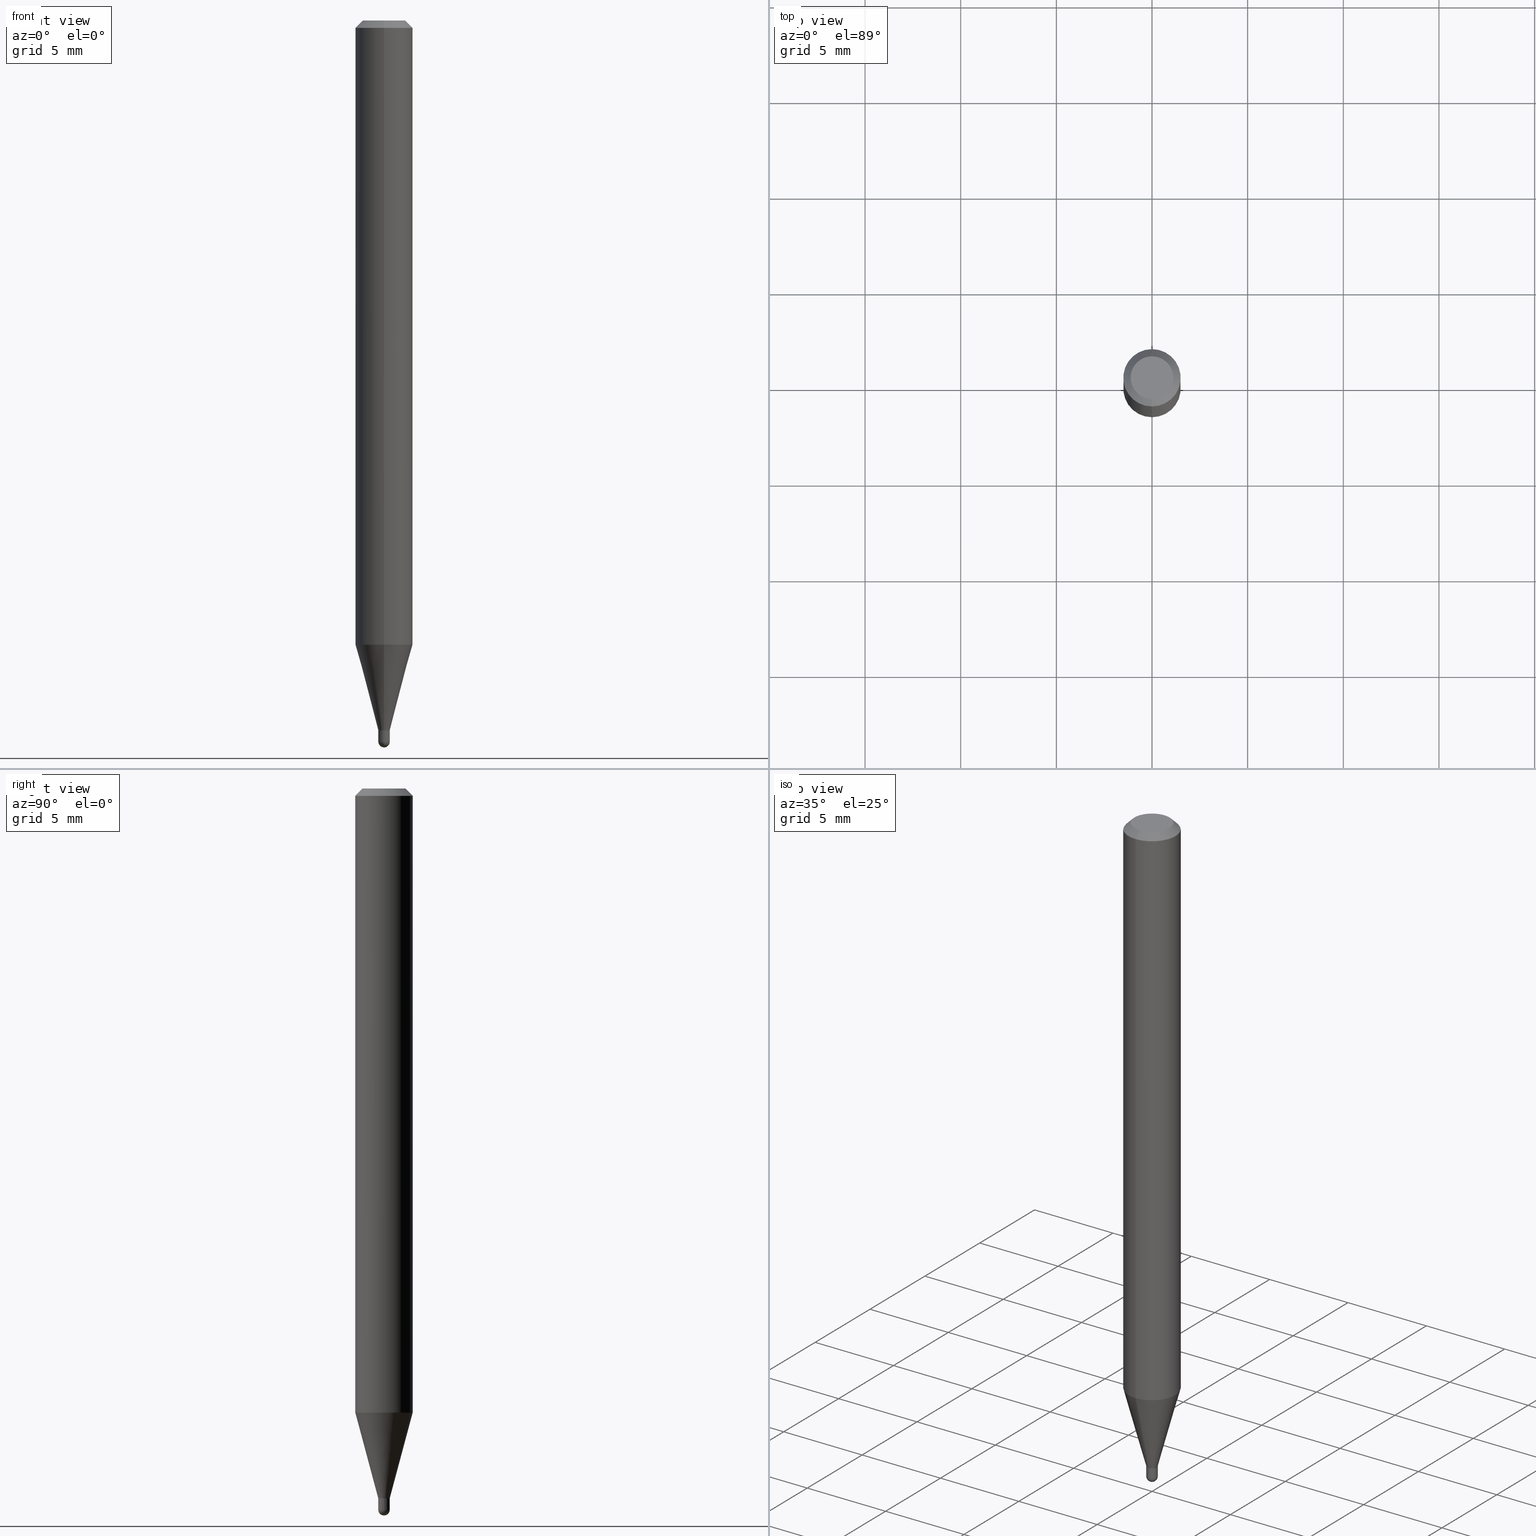
[diagram: canonical four-view strip — front | top / right | iso, engineering-drawing reading convention]
A machine part, canonical four-view strip (front | top / right | iso — engineering-drawing reading convention). The complete STEP part file that produces these views, byte-faithful:
ISO-10303-21;
HEADER;
FILE_DESCRIPTION (( 'STEP AP203' ),
    '1' );
FILE_NAME ('05034.STEP',
    '2024-03-08T21:01:35',
    ( '' ),
    ( '' ),
    'SwSTEP 2.0',
    'SolidWorks 2023',
    '' );
FILE_SCHEMA (( 'CONFIG_CONTROL_DESIGN' ));
ENDSEC;

DATA;
#1 = APPROVAL_ROLE ( '' ) ;
#2 = VERTEX_POINT ( 'NONE', #429 ) ;
#3 = CARTESIAN_POINT ( 'NONE',  ( -7.890747825781910032E-17, -0.01130000000000510284, -1.460699999999999443 ) ) ;
#4 = PERSON_AND_ORGANIZATION ( #220, #206 ) ;
#5 = ORIENTED_EDGE ( 'NONE', *, *, #290, .F. ) ;
#6 = AXIS2_PLACEMENT_3D ( 'NONE', #335, #497, #289 ) ;
#7 = AXIS2_PLACEMENT_3D ( 'NONE', #381, #142, #384 ) ;
#8 = ORIENTED_EDGE ( 'NONE', *, *, #288, .F. ) ;
#9 = ORIENTED_EDGE ( 'NONE', *, *, #274, .T. ) ;
#10 = EDGE_CURVE ( 'NONE', #201, #263, #302, .T. ) ;
#11 = EDGE_CURVE ( 'NONE', #242, #2, #331, .T. ) ;
#12 = LINE ( 'NONE', #192, #171 ) ;
#13 = CC_DESIGN_APPROVAL ( #415, ( #180 ) ) ;
#14 = AXIS2_PLACEMENT_3D ( 'NONE', #217, #132, #504 ) ;
#15 = CARTESIAN_POINT ( 'NONE',  ( 3.572096285194628524E-29, -5.100006791648181685E-15, -1.460699999999999887 ) ) ;
#16 = CYLINDRICAL_SURFACE ( 'NONE', #476, 0.01179999999999965278 ) ;
#17 = EDGE_CURVE ( 'NONE', #348, #278, #369, .T. ) ;
#18 = CARTESIAN_POINT ( 'NONE',  ( 4.195754854663707516E-16, 0.05904999999999994975, -0.01500000000000028741 ) ) ;
#19 = DIRECTION ( 'NONE',  ( -4.851104656540964275E-15, -0.7071067811865500152, -0.7071067811865450192 ) ) ;
#20 = DIRECTION ( 'NONE',  ( -6.982962677686266711E-15, -1.000000000000000000, 0.000000000000000000 ) ) ;
#21 = CARTESIAN_POINT ( 'NONE',  ( -4.123439461173739834E-16, -0.05904999999999999832, 2.061757890615150317E-16 ) ) ;
#22 = CARTESIAN_POINT ( 'NONE',  ( 8.384404281972476725E-17, 0.01179999999999451279, -1.460199999999999942 ) ) ;
#23 = DIRECTION ( 'NONE',  ( 1.000000000000000000, -6.982962677686265922E-15, 4.876176775795935793E-29 ) ) ;
#24 = DIRECTION ( 'NONE',  ( -2.445468806185136597E-29, 3.491481338843145583E-15, 1.000000000000000000 ) ) ;
#25 = CARTESIAN_POINT ( 'NONE',  ( 3.629809349020597767E-29, -5.182405751244879809E-15, -1.484299999999999731 ) ) ;
#26 = DIRECTION ( 'NONE',  ( -6.982962677686266711E-15, -1.000000000000000000, 3.491545962091702205E-15 ) ) ;
#27 = VECTOR ( 'NONE', #327, 39.37007874015748854 ) ;
#28 = PRODUCT_RELATED_PRODUCT_CATEGORY ( 'detail', '', ( #247 ) ) ;
#29 = DIRECTION ( 'NONE',  ( -2.445423680011858089E-29, 3.491545962091702599E-15, 1.000000000000000000 ) ) ;
#30 = ADVANCED_FACE ( 'NONE', ( #307 ), #332, .T. ) ;
#31 = DIRECTION ( 'NONE',  ( 1.000000000000000000, 0.000000000000000000, 0.000000000000000000 ) ) ;
#32 = ADVANCED_FACE ( 'NONE', ( #173 ), #457, .T. ) ;
#33 = PERSON_AND_ORGANIZATION_ROLE ( 'classification_officer' ) ;
#34 = ORIENTED_EDGE ( 'NONE', *, *, #489, .F. ) ;
#35 = DIRECTION ( 'NONE',  ( -6.982962677686265922E-15, -1.000000000000000000, 3.491545962091702599E-15 ) ) ;
#36 = AXIS2_PLACEMENT_3D ( 'NONE', #273, #349, #296 ) ;
#37 = PERSON_AND_ORGANIZATION ( #220, #206 ) ;
#38 = APPROVAL_PERSON_ORGANIZATION ( #4, #415, #314 ) ;
#39 = DIRECTION ( 'NONE',  ( 7.105427357600999492E-15, 1.000000000000000000, 0.000000000000000000 ) ) ;
#40 = PERSON_AND_ORGANIZATION_ROLE ( 'design_supplier' ) ;
#41 = ORIENTED_EDGE ( 'NONE', *, *, #10, .T. ) ;
#42 = ORIENTED_EDGE ( 'NONE', *, *, #11, .F. ) ;
#43 = ORIENTED_EDGE ( 'NONE', *, *, #49, .T. ) ;
#44 = EDGE_LOOP ( 'NONE', ( #161, #264, #209, #88, #226 ) ) ;
#45 = VERTEX_POINT ( 'NONE', #500 ) ;
#46 = CIRCLE ( 'NONE', #503, 0.01180000000000000146 ) ;
#47 = ORIENTED_EDGE ( 'NONE', *, *, #338, .F. ) ;
#48 = ADVANCED_FACE ( 'NONE', ( #469 ), #215, .T. ) ;
#49 = EDGE_CURVE ( 'NONE', #116, #45, #502, .T. ) ;
#50 = ORIENTED_EDGE ( 'NONE', *, *, #466, .F. ) ;
#51 = DIRECTION ( 'NONE',  ( -6.982962677686265922E-15, -1.000000000000000000, 0.000000000000000000 ) ) ;
#52 = CARTESIAN_POINT ( 'NONE',  ( 3.668135520017806926E-31, -5.237318943137582741E-17, -0.01500000000000008098 ) ) ;
#53 = VECTOR ( 'NONE', #184, 39.37007874015748143 ) ;
#54 = APPLICATION_CONTEXT ( 'configuration controlled 3d designs of mechanical parts and assemblies' ) ;
#55 = SPHERICAL_SURFACE ( 'NONE', #130, 0.01180000000000006738 ) ;
#56 = CARTESIAN_POINT ( 'NONE',  ( 0.000000000000000000, 0.000000000000000000, 0.000000000000000000 ) ) ;
#57 = DIRECTION ( 'NONE',  ( 1.000000000000000000, -7.105427357601001070E-15, 4.926315508542082329E-29 ) ) ;
#58 = CARTESIAN_POINT ( 'NONE',  ( 8.206768598032604362E-17, 0.01129999999999490093, -1.460699999999999443 ) ) ;
#59 = CARTESIAN_POINT ( 'NONE',  ( 0.000000000000000000, 0.000000000000000000, 0.000000000000000000 ) ) ;
#60 = AXIS2_PLACEMENT_3D ( 'NONE', #420, #62, #219 ) ;
#61 = CIRCLE ( 'NONE', #117, 0.01180000000000000319 ) ;
#62 = DIRECTION ( 'NONE',  ( -2.445468806185136597E-29, 3.491481338843145583E-15, 1.000000000000000000 ) ) ;
#63 = PRODUCT_DEFINITION ( 'UNKNOWN', '', #180, #475 ) ;
#64 = APPROVAL_DATE_TIME ( #478, #162 ) ;
#65 = EDGE_LOOP ( 'NONE', ( #42, #224, #354, #403 ) ) ;
#66 = VERTEX_POINT ( 'NONE', #3 ) ;
#67 = CARTESIAN_POINT ( 'NONE',  ( 0.000000000000000000, 0.000000000000000000, 0.000000000000000000 ) ) ;
#68 = CARTESIAN_POINT ( 'NONE',  ( 0.000000000000000000, 0.000000000000000000, 0.000000000000000000 ) ) ;
#69 = DIRECTION ( 'NONE',  ( -2.445423680011858089E-29, 3.491545962091702599E-15, 1.000000000000000000 ) ) ;
#70 = APPROVAL_PERSON_ORGANIZATION ( #356, #162, #1 ) ;
#71 = ADVANCED_FACE ( 'NONE', ( #306 ), #351, .T. ) ;
#72 = PLANE ( 'NONE',  #36 ) ;
#73 = VECTOR ( 'NONE', #19, 39.37007874015748143 ) ;
#74 = CARTESIAN_POINT ( 'NONE',  ( 0.000000000000000000, 0.000000000000000000, 0.000000000000000000 ) ) ;
#75 = APPROVAL_ROLE ( '' ) ;
#76 = PERSON_AND_ORGANIZATION ( #220, #206 ) ;
#77 = CARTESIAN_POINT ( 'NONE',  ( 0.01180000000000000319, -8.239895959669796365E-17, 5.753888595439205651E-31 ) ) ;
#78 = CIRCLE ( 'NONE', #238, 0.01179999999999965278 ) ;
#79 = VERTEX_POINT ( 'NONE', #463 ) ;
#80 = LOCAL_TIME ( 16, 1, 35.00000000000000000, #390 ) ;
#81 = ORIENTED_EDGE ( 'NONE', *, *, #310, .F. ) ;
#82 = DIRECTION ( 'NONE',  ( -6.982962677686266711E-15, -1.000000000000000000, 0.000000000000000000 ) ) ;
#83 = ORIENTED_EDGE ( 'NONE', *, *, #379, .T. ) ;
#84 = EDGE_CURVE ( 'NONE', #278, #263, #438, .T. ) ;
#85 = ORIENTED_EDGE ( 'NONE', *, *, #439, .T. ) ;
#86 = CC_DESIGN_PERSON_AND_ORGANIZATION_ASSIGNMENT ( #37, #428, ( #180 ) ) ;
#87 = AXIS2_PLACEMENT_3D ( 'NONE', #304, #169, #99 ) ;
#88 = ORIENTED_EDGE ( 'NONE', *, *, #288, .T. ) ;
#89 = CARTESIAN_POINT ( 'NONE',  ( 3.572030369393320039E-29, -5.100101186827348923E-15, -1.460699999999999443 ) ) ;
#90 = FACE_OUTER_BOUND ( 'NONE', #240, .T. ) ;
#91 = COORDINATED_UNIVERSAL_TIME_OFFSET ( 5, 0, .BEHIND. ) ;
#92 = ORIENTED_EDGE ( 'NONE', *, *, #433, .F. ) ;
#93 = CIRCLE ( 'NONE', #410, 0.01180000000000000146 ) ;
#94 = FACE_OUTER_BOUND ( 'NONE', #65, .T. ) ;
#95 = FACE_OUTER_BOUND ( 'NONE', #203, .T. ) ;
#96 = CARTESIAN_POINT ( 'NONE',  ( 0.000000000000000000, 0.000000000000000000, 0.000000000000000000 ) ) ;
#97 = FACE_OUTER_BOUND ( 'NONE', #485, .T. ) ;
#98 = LINE ( 'NONE', #257, #230 ) ;
#99 = DIRECTION ( 'NONE',  ( -1.000000000000000000, 6.982962677686265922E-15, -4.876176775795935793E-29 ) ) ;
#100 = CIRCLE ( 'NONE', #7, 0.01130000000000000102 ) ;
#101 = FACE_OUTER_BOUND ( 'NONE', #334, .T. ) ;
#102 = DIRECTION ( 'NONE',  ( -2.445423680011858089E-29, 3.491545962091702599E-15, 1.000000000000000000 ) ) ;
#103 = DIRECTION ( 'NONE',  ( -2.445423680011858089E-29, 3.491545962091702599E-15, 1.000000000000000000 ) ) ;
#104 = ADVANCED_FACE ( 'NONE', ( #456 ), #179, .T. ) ;
#105 = DIMENSIONAL_EXPONENTS ( 1.000000000000000000, 0.000000000000000000, 0.000000000000000000, 0.000000000000000000, 0.000000000000000000, 0.000000000000000000, 0.000000000000000000 ) ;
#106 = LINE ( 'NONE', #418, #199 ) ;
#107 = DIRECTION ( 'NONE',  ( -2.445423680011858089E-29, 3.491545962091702599E-15, 1.000000000000000000 ) ) ;
#108 = ORIENTED_EDGE ( 'NONE', *, *, #433, .T. ) ;
#109 = FACE_OUTER_BOUND ( 'NONE', #200, .T. ) ;
#110 =( GEOMETRIC_REPRESENTATION_CONTEXT ( 3 ) GLOBAL_UNCERTAINTY_ASSIGNED_CONTEXT ( ( #204 ) ) GLOBAL_UNIT_ASSIGNED_CONTEXT ( ( #277, #308, #496 ) ) REPRESENTATION_CONTEXT ( 'NONE', 'WORKASPACE' ) );
#111 = CALENDAR_DATE ( 2024, 8, 3 ) ;
#112 = ORIENTED_EDGE ( 'NONE', *, *, #346, .T. ) ;
#113 = DIRECTION ( 'NONE',  ( -2.445423680011858089E-29, 3.491545962091702599E-15, 1.000000000000000000 ) ) ;
#114 = APPROVAL_STATUS ( 'not_yet_approved' ) ;
#115 = DIRECTION ( 'NONE',  ( 6.982962677686265922E-15, 1.000000000000000000, -3.505890868245046092E-15 ) ) ;
#116 = VERTEX_POINT ( 'NONE', #430 ) ;
#117 = AXIS2_PLACEMENT_3D ( 'NONE', #25, #342, #198 ) ;
#118 = ORIENTED_EDGE ( 'NONE', *, *, #84, .T. ) ;
#119 = ORIENTED_EDGE ( 'NONE', *, *, #507, .T. ) ;
#120 = ORIENTED_EDGE ( 'NONE', *, *, #274, .F. ) ;
#121 = EDGE_CURVE ( 'NONE', #242, #168, #355, .T. ) ;
#122 = EDGE_CURVE ( 'NONE', #45, #407, #182, .T. ) ;
#123 = EDGE_LOOP ( 'NONE', ( #479, #41, #480, #92 ) ) ;
#124 = ORIENTED_EDGE ( 'NONE', *, *, #122, .T. ) ;
#125 = AXIS2_PLACEMENT_3D ( 'NONE', #221, #137, #177 ) ;
#126 = ORIENTED_EDGE ( 'NONE', *, *, #10, .F. ) ;
#127 = AXIS2_PLACEMENT_3D ( 'NONE', #363, #202, #285 ) ;
#128 = CARTESIAN_POINT ( 'NONE',  ( -0.01180000000000000319, -5.057362228626839482E-15, -1.484299999999999731 ) ) ;
#129 = AXIS2_PLACEMENT_3D ( 'NONE', #472, #389, #115 ) ;
#130 = AXIS2_PLACEMENT_3D ( 'NONE', #167, #372, #297 ) ;
#131 = DIRECTION ( 'NONE',  ( -2.445423680011858089E-29, 3.491545962091702599E-15, 1.000000000000000000 ) ) ;
#132 = DIRECTION ( 'NONE',  ( -2.445423680011858089E-29, 3.491545962091702599E-15, 1.000000000000000000 ) ) ;
#133 = EDGE_CURVE ( 'NONE', #201, #194, #473, .T. ) ;
#134 = DIRECTION ( 'NONE',  ( -2.445423680011858089E-29, 3.491545962091702599E-15, 1.000000000000000000 ) ) ;
#135 = ADVANCED_FACE ( 'NONE', ( #90 ), #174, .F. ) ;
#136 = DIRECTION ( 'NONE',  ( -6.982962677686266711E-15, -1.000000000000000000, 0.000000000000000000 ) ) ;
#137 = DIRECTION ( 'NONE',  ( -2.445423680011858089E-29, 3.491545962091702599E-15, 1.000000000000000000 ) ) ;
#138 = DIRECTION ( 'NONE',  ( -6.982962677686265922E-15, -1.000000000000000000, 3.505890868245046092E-15 ) ) ;
#139 = VECTOR ( 'NONE', #29, 39.37007874015748143 ) ;
#140 = CIRCLE ( 'NONE', #292, 0.01180000000000000319 ) ;
#141 = CC_DESIGN_SECURITY_CLASSIFICATION ( #258, ( #180 ) ) ;
#142 = DIRECTION ( 'NONE',  ( -2.445423680011858089E-29, 3.491545962091702599E-15, 1.000000000000000000 ) ) ;
#143 = CARTESIAN_POINT ( 'NONE',  ( 3.572030369393320599E-29, -5.100101186827348923E-15, -1.460699999999999887 ) ) ;
#144 = MECHANICAL_CONTEXT ( 'NONE', #487, 'mechanical' ) ;
#145 = DIRECTION ( 'NONE',  ( -2.445423680011858089E-29, 3.491545962091702599E-15, 1.000000000000000000 ) ) ;
#146 = PERSON_AND_ORGANIZATION_ROLE ( 'design_owner' ) ;
#147 = CARTESIAN_POINT ( 'NONE',  ( 8.384404281968934246E-17, 0.01179999999999965278, -4.120024235268087518E-17 ) ) ;
#148 = EDGE_LOOP ( 'NONE', ( #119, #320, #5, #81 ) ) ;
#149 = MANIFOLD_SOLID_BREP ( 'Body-Move/Copy2[1]', #214 ) ;
#150 = VECTOR ( 'NONE', #414, 39.37007874015748143 ) ;
#151 = DATE_AND_TIME ( #193, #291 ) ;
#152 = ADVANCED_FACE ( 'NONE', ( #94 ), #16, .F. ) ;
#153 = ORIENTED_EDGE ( 'NONE', *, *, #122, .F. ) ;
#154 = ORIENTED_EDGE ( 'NONE', *, *, #336, .F. ) ;
#155 = EDGE_LOOP ( 'NONE', ( #441, #445, #112, #417 ) ) ;
#156 = VECTOR ( 'NONE', #330, 39.37007874015748143 ) ;
#157 = ORIENTED_EDGE ( 'NONE', *, *, #489, .T. ) ;
#158 = ADVANCED_FACE ( 'NONE', ( #235 ), #394, .T. ) ;
#159 = ORIENTED_EDGE ( 'NONE', *, *, #507, .F. ) ;
#160 = APPROVAL_DATE_TIME ( #512, #483 ) ;
#161 = ORIENTED_EDGE ( 'NONE', *, *, #439, .F. ) ;
#162 = APPROVAL ( #114, 'UNSPECIFIED' ) ;
#163 = DIRECTION ( 'NONE',  ( -1.807323732225379838E-15, -0.2588190451025252914, 0.9659258262890670910 ) ) ;
#164 = AXIS2_PLACEMENT_3D ( 'NONE', #96, #216, #376 ) ;
#165 = CONICAL_SURFACE ( 'NONE', #510, 0.01130000000000000102, 0.7853981633974739252 ) ;
#166 = DIRECTION ( 'NONE',  ( -4.937700262164674260E-15, -0.7071067811865632269, 0.7071067811865319186 ) ) ;
#167 = CARTESIAN_POINT ( 'NONE',  ( 3.628800252799366100E-29, -5.183850834467873739E-15, -1.484299999999999731 ) ) ;
#168 = VERTEX_POINT ( 'NONE', #22 ) ;
#169 = DIRECTION ( 'NONE',  ( 2.438088387897960049E-29, -3.491481338843145188E-15, -1.000000000000000000 ) ) ;
#170 = EDGE_CURVE ( 'NONE', #278, #348, #448, .T. ) ;
#171 = VECTOR ( 'NONE', #163, 39.37007874015748143 ) ;
#172 = CC_DESIGN_PERSON_AND_ORGANIZATION_ASSIGNMENT ( #241, #359, ( #63 ) ) ;
#173 = FACE_OUTER_BOUND ( 'NONE', #148, .T. ) ;
#174 = PLANE ( 'NONE',  #6 ) ;
#175 = DIRECTION ( 'NONE',  ( 1.000000000000000000, -6.982962677686297476E-15, 0.000000000000000000 ) ) ;
#176 = VERTEX_POINT ( 'NONE', #181 ) ;
#177 = DIRECTION ( 'NONE',  ( -6.982962677686265922E-15, -1.000000000000000000, 0.000000000000000000 ) ) ;
#178 = CARTESIAN_POINT ( 'NONE',  ( 1.968549205807057487E-45, -2.810670431833362573E-31, -8.049931068785233476E-17 ) ) ;
#179 = CYLINDRICAL_SURFACE ( 'NONE', #409, 0.05904999999999999832 ) ;
#180 = PRODUCT_DEFINITION_FORMATION_WITH_SPECIFIED_SOURCE ( 'ANY', '', #247, .NOT_KNOWN. ) ;
#181 = CARTESIAN_POINT ( 'NONE',  ( 0.01180000000000000319, -5.223605231043229660E-15, -1.484299999999999731 ) ) ;
#182 = CIRCLE ( 'NONE', #383, 0.01180000000000000319 ) ;
#183 = VECTOR ( 'NONE', #371, 39.37007874015748143 ) ;
#184 = DIRECTION ( 'NONE',  ( -2.445423680011858089E-29, 3.491545962091702599E-15, 1.000000000000000000 ) ) ;
#185 = CARTESIAN_POINT ( 'NONE',  ( 3.572030369393320599E-29, -5.100101186827348923E-15, -1.460699999999999887 ) ) ;
#186 = CARTESIAN_POINT ( 'NONE',  ( -8.239895959666188559E-17, -0.01180000000000521951, -1.484299999999999731 ) ) ;
#187 = PERSON_AND_ORGANIZATION ( #220, #206 ) ;
#188 = ADVANCED_FACE ( 'NONE', ( #341 ), #345, .F. ) ;
#189 = VECTOR ( 'NONE', #492, 39.37007874015748143 ) ;
#190 = AXIS2_PLACEMENT_3D ( 'NONE', #89, #250, #51 ) ;
#191 = ORIENTED_EDGE ( 'NONE', *, *, #466, .T. ) ;
#192 = CARTESIAN_POINT ( 'NONE',  ( -8.239895959665980251E-17, -0.01180000000000475287, -1.460699999999999887 ) ) ;
#193 = CALENDAR_DATE ( 2024, 8, 3 ) ;
#194 = VERTEX_POINT ( 'NONE', #422 ) ;
#195 = DIRECTION ( 'NONE',  ( -2.445423680011858089E-29, 3.491545962091702599E-15, 1.000000000000000000 ) ) ;
#196 = ADVANCED_FACE ( 'NONE', ( #462 ), #222, .F. ) ;
#197 = ORIENTED_EDGE ( 'NONE', *, *, #17, .F. ) ;
#198 = DIRECTION ( 'NONE',  ( 1.000000000000000000, -6.982962677686297476E-15, 0.000000000000000000 ) ) ;
#199 = VECTOR ( 'NONE', #166, 39.37007874015748143 ) ;
#200 = EDGE_LOOP ( 'NONE', ( #305, #318 ) ) ;
#201 = VERTEX_POINT ( 'NONE', #493 ) ;
#202 = DIRECTION ( 'NONE',  ( -1.000000000000000000, 6.982962677686265922E-15, -4.883557194083112340E-29 ) ) ;
#203 = EDGE_LOOP ( 'NONE', ( #283, #375, #154, #153 ) ) ;
#204 = UNCERTAINTY_MEASURE_WITH_UNIT (LENGTH_MEASURE( 1.000000000000000082E-05 ), #277, 'distance_accuracy_value', 'NONE');
#205 = LINE ( 'NONE', #368, #73 ) ;
#206 = ORGANIZATION ( 'UNSPECIFIED', 'UNSPECIFIED', '' ) ;
#207 = DIRECTION ( 'NONE',  ( 2.445423680011858089E-29, -3.491545962091702599E-15, -1.000000000000000000 ) ) ;
#208 = AXIS2_PLACEMENT_3D ( 'NONE', #298, #102, #386 ) ;
#209 = ORIENTED_EDGE ( 'NONE', *, *, #467, .T. ) ;
#210 = CARTESIAN_POINT ( 'NONE',  ( 0.01180000000000000146, -5.182405751244879809E-15, -1.460699999999999887 ) ) ;
#211 = EDGE_CURVE ( 'NONE', #194, #201, #374, .T. ) ;
#212 = EDGE_CURVE ( 'NONE', #2, #242, #436, .T. ) ;
#213 = CARTESIAN_POINT ( 'NONE',  ( 3.572096285194628524E-29, -5.100006791648181685E-15, -1.460699999999999887 ) ) ;
#214 = CLOSED_SHELL ( 'NONE', ( #30, #253, #188, #432, #249 ) ) ;
#215 = CONICAL_SURFACE ( 'NONE', #129, 0.05904999999999999832, 0.7853981633974483900 ) ;
#216 = DIRECTION ( 'NONE',  ( -2.445468806185136597E-29, 3.491481338843145583E-15, 1.000000000000000000 ) ) ;
#217 = CARTESIAN_POINT ( 'NONE',  ( 3.140805823306065570E-29, -4.484404064503547858E-15, -1.284360599342374787 ) ) ;
#218 = AXIS2_PLACEMENT_3D ( 'NONE', #178, #299, #266 ) ;
#219 = DIRECTION ( 'NONE',  ( 1.000000000000000000, -6.982962677686297476E-15, 0.000000000000000000 ) ) ;
#220 = PERSON ( 'UNSPECIFIED', 'UNSPECIFIED', 'UNSPECIFIED', ('UNSPECIFIED'), ('UNSPECIFIED'), ('UNSPECIFIED') ) ;
#221 = CARTESIAN_POINT ( 'NONE',  ( 3.572030369393320039E-29, -5.100101186827348923E-15, -1.460699999999999443 ) ) ;
#222 = CYLINDRICAL_SURFACE ( 'NONE', #245, 0.01179999999999965278 ) ;
#223 = CARTESIAN_POINT ( 'NONE',  ( 3.572030369393320599E-29, -5.100101186827348923E-15, -1.460699999999999887 ) ) ;
#224 = ORIENTED_EDGE ( 'NONE', *, *, #121, .T. ) ;
#225 = DIRECTION ( 'NONE',  ( -2.445423680011858089E-29, 3.491545962091702599E-15, 1.000000000000000000 ) ) ;
#226 = ORIENTED_EDGE ( 'NONE', *, *, #451, .F. ) ;
#227 = DIRECTION ( 'NONE',  ( -2.445423680011858089E-29, 3.491545962091702599E-15, 1.000000000000000000 ) ) ;
#228 = DIRECTION ( 'NONE',  ( -6.982962677686266711E-15, -1.000000000000000000, 0.000000000000000000 ) ) ;
#229 = AXIS2_PLACEMENT_3D ( 'NONE', #450, #413, #254 ) ;
#230 = VECTOR ( 'NONE', #499, 39.37007874015748143 ) ;
#231 = CARTESIAN_POINT ( 'NONE',  ( 3.629809349020597767E-29, -5.182405751244879809E-15, -1.484299999999999731 ) ) ;
#232 = SECURITY_CLASSIFICATION_LEVEL ( 'unclassified' ) ;
#233 = ADVANCED_FACE ( 'NONE', ( #97 ), #165, .T. ) ;
#234 = CC_DESIGN_DATE_AND_TIME_ASSIGNMENT ( #151, #468, ( #258 ) ) ;
#235 = FACE_OUTER_BOUND ( 'NONE', #313, .T. ) ;
#236 = CARTESIAN_POINT ( 'NONE',  ( 3.628800252799366100E-29, -5.183850834467873739E-15, -1.484299999999999731 ) ) ;
#237 = DIRECTION ( 'NONE',  ( 1.000000000000000000, -6.982962677686297476E-15, 0.000000000000000000 ) ) ;
#238 = AXIS2_PLACEMENT_3D ( 'NONE', #397, #195, #82 ) ;
#239 = CALENDAR_DATE ( 2024, 8, 3 ) ;
#240 = EDGE_LOOP ( 'NONE', ( #159, #120 ) ) ;
#241 = PERSON_AND_ORGANIZATION ( #220, #206 ) ;
#242 = VERTEX_POINT ( 'NONE', #295 ) ;
#243 = ORIENTED_EDGE ( 'NONE', *, *, #382, .T. ) ;
#244 = ORIENTED_EDGE ( 'NONE', *, *, #170, .F. ) ;
#245 = AXIS2_PLACEMENT_3D ( 'NONE', #67, #225, #347 ) ;
#246 = ORIENTED_EDGE ( 'NONE', *, *, #310, .T. ) ;
#247 = PRODUCT ( '05034', '05034', '', ( #144 ) ) ;
#248 = VERTEX_POINT ( 'NONE', #454 ) ;
#249 = ADVANCED_FACE ( 'NONE', ( #256 ), #416, .T. ) ;
#250 = DIRECTION ( 'NONE',  ( -2.445423680011858089E-29, 3.491545962091702599E-15, 1.000000000000000000 ) ) ;
#251 = AXIS2_PLACEMENT_3D ( 'NONE', #59, #377, #23 ) ;
#252 = CARTESIAN_POINT ( 'NONE',  ( 0.000000000000000000, 0.000000000000000000, 0.000000000000000000 ) ) ;
#253 = ADVANCED_FACE ( 'NONE', ( #408 ), #449, .T. ) ;
#254 = DIRECTION ( 'NONE',  ( -6.982962677686265922E-15, -1.000000000000000000, 4.626330217890369336E-15 ) ) ;
#255 = DIRECTION ( 'NONE',  ( 1.000000000000000000, -6.982962677686298265E-15, 0.000000000000000000 ) ) ;
#256 = FACE_OUTER_BOUND ( 'NONE', #44, .T. ) ;
#257 = CARTESIAN_POINT ( 'NONE',  ( 8.029132914092702418E-17, 0.01129999999999490093, -1.460699999999999443 ) ) ;
#258 = SECURITY_CLASSIFICATION ( '', '', #232 ) ;
#259 = AXIS2_PLACEMENT_3D ( 'NONE', #329, #131, #498 ) ;
#260 = DIRECTION ( 'NONE',  ( 0.000000000000000000, 0.000000000000000000, 1.000000000000000000 ) ) ;
#261 = CC_DESIGN_APPROVAL ( #162, ( #258 ) ) ;
#262 = CARTESIAN_POINT ( 'NONE',  ( 3.668135520017806926E-31, -5.237318943137582741E-17, -0.01500000000000008098 ) ) ;
#263 = VERTEX_POINT ( 'NONE', #18 ) ;
#264 = ORIENTED_EDGE ( 'NONE', *, *, #336, .T. ) ;
#265 = CYLINDRICAL_SURFACE ( 'NONE', #352, 0.05904999999999999832 ) ;
#266 = DIRECTION ( 'NONE',  ( -6.982962677686265133E-15, -1.000000000000000000, 3.491545962091702994E-15 ) ) ;
#267 = DIRECTION ( 'NONE',  ( -6.982962677686266711E-15, -1.000000000000000000, 0.000000000000000000 ) ) ;
#268 = PERSON_AND_ORGANIZATION ( #220, #206 ) ;
#269 = DIRECTION ( 'NONE',  ( -6.982962677686266711E-15, -1.000000000000000000, 0.000000000000000000 ) ) ;
#270 = CARTESIAN_POINT ( 'NONE',  ( 3.628800252799366100E-29, -5.183850834467873739E-15, -1.484299999999999731 ) ) ;
#271 = APPLICATION_PROTOCOL_DEFINITION ( 'international standard', 'config_control_design', 1994, #54 ) ;
#272 = ADVANCED_FACE ( 'NONE', ( #101 ), #265, .T. ) ;
#273 = CARTESIAN_POINT ( 'NONE',  ( 3.075995059520799729E-16, 0.04404999999999999888, -1.940522549740656613E-16 ) ) ;
#274 = EDGE_CURVE ( 'NONE', #447, #66, #100, .T. ) ;
#275 = APPROVAL_DATE_TIME ( #281, #415 ) ;
#276 = LINE ( 'NONE', #77, #482 ) ;
#277 =( CONVERSION_BASED_UNIT ( 'INCH', #446 ) LENGTH_UNIT ( ) NAMED_UNIT ( #105 ) );
#278 = VERTEX_POINT ( 'NONE', #388 ) ;
#279 = LOCAL_TIME ( 16, 1, 35.00000000000000000, #319 ) ;
#280 = ORIENTED_EDGE ( 'NONE', *, *, #366, .T. ) ;
#281 = DATE_AND_TIME ( #111, #396 ) ;
#282 = VERTEX_POINT ( 'NONE', #186 ) ;
#283 = ORIENTED_EDGE ( 'NONE', *, *, #49, .F. ) ;
#284 = CIRCLE ( 'NONE', #127, 0.01180000000000006738 ) ;
#285 = DIRECTION ( 'NONE',  ( -6.982962677686265133E-15, -1.000000000000000000, 0.000000000000000000 ) ) ;
#286 = CIRCLE ( 'NONE', #259, 0.05904999999999999832 ) ;
#287 = ORIENTED_EDGE ( 'NONE', *, *, #212, .F. ) ;
#288 = EDGE_CURVE ( 'NONE', #176, #404, #276, .T. ) ;
#289 = DIRECTION ( 'NONE',  ( -6.982962677686265922E-15, -1.000000000000000000, 3.491545962091702599E-15 ) ) ;
#290 = EDGE_CURVE ( 'NONE', #471, #168, #78, .T. ) ;
#291 = LOCAL_TIME ( 16, 1, 35.00000000000000000, #350 ) ;
#292 = AXIS2_PLACEMENT_3D ( 'NONE', #380, #24, #175 ) ;
#293 = CALENDAR_DATE ( 2024, 8, 3 ) ;
#294 = LINE ( 'NONE', #452, #150 ) ;
#295 = CARTESIAN_POINT ( 'NONE',  ( 2.517097641430478704E-16, 0.01179999999999455269, -1.460699999999999887 ) ) ;
#296 = DIRECTION ( 'NONE',  ( 6.982962677686265922E-15, 1.000000000000000000, -3.491545962091702599E-15 ) ) ;
#297 = DIRECTION ( 'NONE',  ( -6.982962677686265133E-15, -1.000000000000000000, 0.000000000000000000 ) ) ;
#298 = CARTESIAN_POINT ( 'NONE',  ( 1.968549205807057487E-45, -2.810670431833362573E-31, -8.049931068785233476E-17 ) ) ;
#299 = DIRECTION ( 'NONE',  ( -2.445423680011858089E-29, 3.491545962091702599E-15, 1.000000000000000000 ) ) ;
#300 = LINE ( 'NONE', #495, #183 ) ;
#301 = LOCAL_TIME ( 16, 1, 35.00000000000000000, #91 ) ;
#302 = LINE ( 'NONE', #459, #139 ) ;
#303 = AXIS2_PLACEMENT_3D ( 'NONE', #223, #427, #228 ) ;
#304 = CARTESIAN_POINT ( 'NONE',  ( 8.239895959673367193E-17, 0.01179999999999489964, -1.460699999999999887 ) ) ;
#305 = ORIENTED_EDGE ( 'NONE', *, *, #170, .T. ) ;
#306 = FACE_OUTER_BOUND ( 'NONE', #155, .T. ) ;
#307 = FACE_OUTER_BOUND ( 'NONE', #511, .T. ) ;
#308 =( NAMED_UNIT ( * ) PLANE_ANGLE_UNIT ( ) SI_UNIT ( $, .RADIAN. ) );
#309 = EDGE_CURVE ( 'NONE', #168, #471, #425, .T. ) ;
#310 = EDGE_CURVE ( 'NONE', #66, #471, #106, .T. ) ;
#311 = CARTESIAN_POINT ( 'NONE',  ( 3.572030369393320599E-29, -5.100101186827348923E-15, -1.460699999999999887 ) ) ;
#312 = ORIENTED_EDGE ( 'NONE', *, *, #467, .F. ) ;
#313 = EDGE_LOOP ( 'NONE', ( #431, #280, #393, #401 ) ) ;
#314 = APPROVAL_ROLE ( '' ) ;
#315 = ORIENTED_EDGE ( 'NONE', *, *, #378, .T. ) ;
#316 = ORIENTED_EDGE ( 'NONE', *, *, #451, .T. ) ;
#317 = AXIS2_PLACEMENT_3D ( 'NONE', #143, #103, #267 ) ;
#318 = ORIENTED_EDGE ( 'NONE', *, *, #17, .T. ) ;
#319 = COORDINATED_UNIVERSAL_TIME_OFFSET ( 5, 0, .BEHIND. ) ;
#320 = ORIENTED_EDGE ( 'NONE', *, *, #453, .T. ) ;
#321 = MANIFOLD_SOLID_BREP ( 'Body-Move/Copy2[2]', #361 ) ;
#322 = EDGE_CURVE ( 'NONE', #79, #263, #286, .T. ) ;
#323 = CC_DESIGN_PERSON_AND_ORGANIZATION_ASSIGNMENT ( #391, #33, ( #258 ) ) ;
#324 = EDGE_LOOP ( 'NONE', ( #83, #316 ) ) ;
#325 = DIRECTION ( 'NONE',  ( -2.445468806185136597E-29, 3.491481338843145583E-15, 1.000000000000000000 ) ) ;
#326 =( LENGTH_UNIT ( ) NAMED_UNIT ( * ) SI_UNIT ( $, .METRE. ) );
#327 = DIRECTION ( 'NONE',  ( 1.839019923739650408E-15, 0.2588190451025320082, 0.9659258262890650926 ) ) ;
#328 = CARTESIAN_POINT ( 'NONE',  ( 4.123439461173743285E-16, 0.05904999999999994975, -0.01500000000000028741 ) ) ;
#329 = CARTESIAN_POINT ( 'NONE',  ( 3.668135520017806926E-31, -5.237318943137582741E-17, -0.01500000000000008098 ) ) ;
#330 = DIRECTION ( 'NONE',  ( -2.445423680011858089E-29, 3.491545962091702599E-15, 1.000000000000000000 ) ) ;
#331 = CIRCLE ( 'NONE', #481, 0.01179999999999965278 ) ;
#332 = CYLINDRICAL_SURFACE ( 'NONE', #164, 0.01180000000000000319 ) ;
#333 = LINE ( 'NONE', #411, #27 ) ;
#334 = EDGE_LOOP ( 'NONE', ( #126, #367, #108, #477 ) ) ;
#335 = CARTESIAN_POINT ( 'NONE',  ( 3.572030369393320039E-29, -5.100101186827348923E-15, -1.460699999999999443 ) ) ;
#336 = EDGE_CURVE ( 'NONE', #407, #282, #61, .T. ) ;
#337 = CARTESIAN_POINT ( 'NONE',  ( -8.239895959666007368E-17, -0.01180000000000479277, -1.460199999999999942 ) ) ;
#338 = EDGE_CURVE ( 'NONE', #116, #282, #284, .T. ) ;
#339 = ORIENTED_EDGE ( 'NONE', *, *, #121, .F. ) ;
#340 = DIRECTION ( 'NONE',  ( 1.000000000000000000, -6.982962677686265133E-15, 4.883557194083112340E-29 ) ) ;
#341 = FACE_OUTER_BOUND ( 'NONE', #324, .T. ) ;
#342 = DIRECTION ( 'NONE',  ( -2.445468806185136597E-29, 3.491481338843145583E-15, 1.000000000000000000 ) ) ;
#343 = DIRECTION ( 'NONE',  ( -6.982962677686265922E-15, -1.000000000000000000, 3.491545962091702599E-15 ) ) ;
#344 = AXIS2_PLACEMENT_3D ( 'NONE', #442, #370, #20 ) ;
#345 = PLANE ( 'NONE',  #87 ) ;
#346 = EDGE_CURVE ( 'NONE', #2, #194, #12, .T. ) ;
#347 = DIRECTION ( 'NONE',  ( -6.982962677686266711E-15, -1.000000000000000000, 3.491545962091702205E-15 ) ) ;
#348 = VERTEX_POINT ( 'NONE', #484 ) ;
#349 = DIRECTION ( 'NONE',  ( 2.445423680011857808E-29, -3.491545962091702599E-15, -1.000000000000000000 ) ) ;
#350 = COORDINATED_UNIVERSAL_TIME_OFFSET ( 5, 0, .BEHIND. ) ;
#351 = CONICAL_SURFACE ( 'NONE', #419, 0.01179999999999965278, 0.2617993877991576235 ) ;
#352 = AXIS2_PLACEMENT_3D ( 'NONE', #74, #69, #343 ) ;
#353 = CC_DESIGN_APPROVAL ( #483, ( #63 ) ) ;
#354 = ORIENTED_EDGE ( 'NONE', *, *, #309, .T. ) ;
#355 = LINE ( 'NONE', #147, #53 ) ;
#356 = PERSON_AND_ORGANIZATION ( #220, #206 ) ;
#357 = EDGE_LOOP ( 'NONE', ( #339, #287, #243, #406 ) ) ;
#358 = ORIENTED_EDGE ( 'NONE', *, *, #379, .F. ) ;
#359 = PERSON_AND_ORGANIZATION_ROLE ( 'creator' ) ;
#360 = AXIS2_PLACEMENT_3D ( 'NONE', #68, #260, #31 ) ;
#361 = CLOSED_SHELL ( 'NONE', ( #152, #32, #48, #104, #158, #71, #272, #402, #474, #135, #233, #196 ) ) ;
#362 = CIRCLE ( 'NONE', #60, 0.01180000000000000319 ) ;
#363 = CARTESIAN_POINT ( 'NONE',  ( 3.628800252799366100E-29, -5.183850834467873739E-15, -1.484299999999999731 ) ) ;
#364 = EDGE_LOOP ( 'NONE', ( #34, #244, #118, #315 ) ) ;
#365 = CC_DESIGN_PERSON_AND_ORGANIZATION_ASSIGNMENT ( #268, #146, ( #247 ) ) ;
#366 = EDGE_CURVE ( 'NONE', #242, #201, #333, .T. ) ;
#367 = ORIENTED_EDGE ( 'NONE', *, *, #133, .T. ) ;
#368 = CARTESIAN_POINT ( 'NONE',  ( -4.051124067684085231E-16, -0.05905000000000005383, -0.01499999999999987454 ) ) ;
#369 = CIRCLE ( 'NONE', #208, 0.04404999999999999888 ) ;
#370 = DIRECTION ( 'NONE',  ( -2.445423680011858089E-29, 3.491545962091702599E-15, 1.000000000000000000 ) ) ;
#371 = DIRECTION ( 'NONE',  ( -2.445423680011858089E-29, 3.491545962091702599E-15, 1.000000000000000000 ) ) ;
#372 = DIRECTION ( 'NONE',  ( 1.000000000000000000, -6.982962677686265133E-15, 4.883557194083112340E-29 ) ) ;
#373 = DIRECTION ( 'NONE',  ( -2.445468806185136597E-29, 3.491481338843145583E-15, 1.000000000000000000 ) ) ;
#374 = CIRCLE ( 'NONE', #14, 0.05904999999999999832 ) ;
#375 = ORIENTED_EDGE ( 'NONE', *, *, #338, .T. ) ;
#376 = DIRECTION ( 'NONE',  ( 1.000000000000000000, -6.982962677686265922E-15, 4.876176775795935793E-29 ) ) ;
#377 = DIRECTION ( 'NONE',  ( -2.445468806185136597E-29, 3.491481338843145583E-15, 1.000000000000000000 ) ) ;
#378 = EDGE_CURVE ( 'NONE', #263, #79, #465, .T. ) ;
#379 = EDGE_CURVE ( 'NONE', #404, #248, #93, .T. ) ;
#380 = CARTESIAN_POINT ( 'NONE',  ( 3.629809349020597767E-29, -5.182405751244879809E-15, -1.484299999999999731 ) ) ;
#381 = CARTESIAN_POINT ( 'NONE',  ( 3.572030369393320039E-29, -5.100101186827348923E-15, -1.460699999999999443 ) ) ;
#382 = EDGE_CURVE ( 'NONE', #2, #471, #300, .T. ) ;
#383 = AXIS2_PLACEMENT_3D ( 'NONE', #231, #325, #237 ) ;
#384 = DIRECTION ( 'NONE',  ( -6.982962677686265922E-15, -1.000000000000000000, 0.000000000000000000 ) ) ;
#385 = CONICAL_SURFACE ( 'NONE', #458, 0.05904999999999999832, 0.7853981633974483900 ) ;
#386 = DIRECTION ( 'NONE',  ( -6.982962677686265133E-15, -1.000000000000000000, 3.491545962091702994E-15 ) ) ;
#387 = DIRECTION ( 'NONE',  ( -6.982962677686265922E-15, -1.000000000000000000, 0.000000000000000000 ) ) ;
#388 = CARTESIAN_POINT ( 'NONE',  ( 3.599717260347271507E-16, 0.04404999999999999888, -2.343019103179918348E-16 ) ) ;
#389 = DIRECTION ( 'NONE',  ( 2.445423680011858089E-29, -3.491545962091702599E-15, -1.000000000000000000 ) ) ;
#390 = COORDINATED_UNIVERSAL_TIME_OFFSET ( 5, 0, .BEHIND. ) ;
#391 = PERSON_AND_ORGANIZATION ( #220, #206 ) ;
#392 = COORDINATED_UNIVERSAL_TIME_OFFSET ( 5, 0, .BEHIND. ) ;
#393 = ORIENTED_EDGE ( 'NONE', *, *, #211, .F. ) ;
#394 = CONICAL_SURFACE ( 'NONE', #303, 0.01179999999999965278, 0.2617993877991576235 ) ;
#395 = CC_DESIGN_DATE_AND_TIME_ASSIGNMENT ( #399, #440, ( #63 ) ) ;
#396 = LOCAL_TIME ( 16, 1, 35.00000000000000000, #392 ) ;
#397 = CARTESIAN_POINT ( 'NONE',  ( 3.570807657553315175E-29, -5.098355413846304648E-15, -1.460199999999999942 ) ) ;
#398 = PRODUCT_DEFINITION_SHAPE ( 'NONE', 'NONE',  #63 ) ;
#399 = DATE_AND_TIME ( #239, #279 ) ;
#400 = ORIENTED_EDGE ( 'NONE', *, *, #309, .F. ) ;
#401 = ORIENTED_EDGE ( 'NONE', *, *, #346, .F. ) ;
#402 = ADVANCED_FACE ( 'NONE', ( #488 ), #385, .T. ) ;
#403 = ORIENTED_EDGE ( 'NONE', *, *, #382, .F. ) ;
#404 = VERTEX_POINT ( 'NONE', #210 ) ;
#405 = AXIS2_PLACEMENT_3D ( 'NONE', #270, #340, #460 ) ;
#406 = ORIENTED_EDGE ( 'NONE', *, *, #290, .T. ) ;
#407 = VERTEX_POINT ( 'NONE', #128 ) ;
#408 = FACE_OUTER_BOUND ( 'NONE', #443, .T. ) ;
#409 = AXIS2_PLACEMENT_3D ( 'NONE', #56, #113, #35 ) ;
#410 = AXIS2_PLACEMENT_3D ( 'NONE', #15, #491, #255 ) ;
#411 = CARTESIAN_POINT ( 'NONE',  ( 8.384404281972505075E-17, 0.01179999999999455269, -1.460699999999999887 ) ) ;
#412 = LINE ( 'NONE', #21, #156 ) ;
#413 = DIRECTION ( 'NONE',  ( -2.445423680011858089E-29, 3.491545962091702599E-15, 1.000000000000000000 ) ) ;
#414 = DIRECTION ( 'NONE',  ( -2.445468806185136877E-29, 3.491481338843145188E-15, 1.000000000000000000 ) ) ;
#415 = APPROVAL ( #464, 'UNSPECIFIED' ) ;
#416 = CYLINDRICAL_SURFACE ( 'NONE', #251, 0.01180000000000000319 ) ;
#417 = ORIENTED_EDGE ( 'NONE', *, *, #133, .F. ) ;
#418 = CARTESIAN_POINT ( 'NONE',  ( -7.890747825781910032E-17, -0.01130000000000510284, -1.460699999999999443 ) ) ;
#419 = AXIS2_PLACEMENT_3D ( 'NONE', #311, #107, #269 ) ;
#420 = CARTESIAN_POINT ( 'NONE',  ( 3.629809349020597767E-29, -5.182405751244879809E-15, -1.484299999999999731 ) ) ;
#421 = CIRCLE ( 'NONE', #190, 0.01130000000000000102 ) ;
#422 = CARTESIAN_POINT ( 'NONE',  ( -4.123439461173426262E-16, -0.05905000000000448085, -1.284360599342374565 ) ) ;
#423 = CARTESIAN_POINT ( 'NONE',  ( 3.572030369393320039E-29, -5.100101186827348923E-15, -1.460699999999999443 ) ) ;
#424 = DIRECTION ( 'NONE',  ( -2.445423680011858089E-29, 3.491545962091702599E-15, 1.000000000000000000 ) ) ;
#425 = CIRCLE ( 'NONE', #344, 0.01179999999999965278 ) ;
#426 = APPROVAL_STATUS ( 'not_yet_approved' ) ;
#427 = DIRECTION ( 'NONE',  ( -2.445423680011858089E-29, 3.491545962091702599E-15, 1.000000000000000000 ) ) ;
#428 = PERSON_AND_ORGANIZATION_ROLE ( 'creator' ) ;
#429 = CARTESIAN_POINT ( 'NONE',  ( -8.239895959665980251E-17, -0.01180000000000475287, -1.460699999999999887 ) ) ;
#430 = CARTESIAN_POINT ( 'NONE',  ( 3.657152236601735168E-29, -5.225772855877719767E-15, -1.496099999999999985 ) ) ;
#431 = ORIENTED_EDGE ( 'NONE', *, *, #212, .T. ) ;
#432 = ADVANCED_FACE ( 'NONE', ( #95 ), #55, .T. ) ;
#433 = EDGE_CURVE ( 'NONE', #194, #79, #412, .T. ) ;
#434 = DIRECTION ( 'NONE',  ( -2.445468806185136877E-29, 3.491481338843145188E-15, 1.000000000000000000 ) ) ;
#435 = EDGE_LOOP ( 'NONE', ( #197, #157, #470, #437 ) ) ;
#436 = CIRCLE ( 'NONE', #317, 0.01179999999999965278 ) ;
#437 = ORIENTED_EDGE ( 'NONE', *, *, #84, .F. ) ;
#438 = LINE ( 'NONE', #328, #189 ) ;
#439 = EDGE_CURVE ( 'NONE', #407, #248, #294, .T. ) ;
#440 = DATE_TIME_ROLE ( 'creation_date' ) ;
#441 = ORIENTED_EDGE ( 'NONE', *, *, #366, .F. ) ;
#442 = CARTESIAN_POINT ( 'NONE',  ( 3.570807657553315175E-29, -5.098355413846304648E-15, -1.460199999999999942 ) ) ;
#443 = EDGE_LOOP ( 'NONE', ( #47, #43, #50, #312 ) ) ;
#444 = ADVANCED_BREP_SHAPE_REPRESENTATION ( '05034', ( #149, #321, #360 ), #110 ) ;
#445 = ORIENTED_EDGE ( 'NONE', *, *, #11, .T. ) ;
#446 = LENGTH_MEASURE_WITH_UNIT ( LENGTH_MEASURE( 0.02539999999999999897 ), #326 );
#447 = VERTEX_POINT ( 'NONE', #58 ) ;
#448 = CIRCLE ( 'NONE', #218, 0.04404999999999999888 ) ;
#449 = SPHERICAL_SURFACE ( 'NONE', #405, 0.01180000000000006738 ) ;
#450 = CARTESIAN_POINT ( 'NONE',  ( 3.140805823306065570E-29, -4.484404064503547858E-15, -1.284360599342374787 ) ) ;
#451 = EDGE_CURVE ( 'NONE', #248, #404, #46, .T. ) ;
#452 = CARTESIAN_POINT ( 'NONE',  ( -0.01180000000000000319, 8.384404281969184463E-17, -5.804343406500789892E-31 ) ) ;
#453 = EDGE_CURVE ( 'NONE', #447, #168, #98, .T. ) ;
#454 = CARTESIAN_POINT ( 'NONE',  ( -0.01180000000000000146, -5.057362228626839482E-15, -1.460699999999999887 ) ) ;
#455 = DIRECTION ( 'NONE',  ( 1.000000000000000000, -6.982962677686298265E-15, 0.000000000000000000 ) ) ;
#456 = FACE_OUTER_BOUND ( 'NONE', #123, .T. ) ;
#457 = CONICAL_SURFACE ( 'NONE', #125, 0.01130000000000000102, 0.7853981633974739252 ) ;
#458 = AXIS2_PLACEMENT_3D ( 'NONE', #262, #207, #486 ) ;
#459 = CARTESIAN_POINT ( 'NONE',  ( 4.195754854663390985E-16, 0.05904999999999999832, -2.061757890615150317E-16 ) ) ;
#460 = DIRECTION ( 'NONE',  ( -6.982962677686265133E-15, -1.000000000000000000, 0.000000000000000000 ) ) ;
#461 = ORIENTED_EDGE ( 'NONE', *, *, #453, .F. ) ;
#462 = FACE_OUTER_BOUND ( 'NONE', #357, .T. ) ;
#463 = CARTESIAN_POINT ( 'NONE',  ( -4.123439461173736383E-16, -0.05905000000000005383, -0.01499999999999987454 ) ) ;
#464 = APPROVAL_STATUS ( 'not_yet_approved' ) ;
#465 = CIRCLE ( 'NONE', #490, 0.05904999999999999832 ) ;
#466 = EDGE_CURVE ( 'NONE', #176, #45, #362, .T. ) ;
#467 = EDGE_CURVE ( 'NONE', #282, #176, #140, .T. ) ;
#468 = DATE_TIME_ROLE ( 'classification_date' ) ;
#469 = FACE_OUTER_BOUND ( 'NONE', #435, .T. ) ;
#470 = ORIENTED_EDGE ( 'NONE', *, *, #322, .T. ) ;
#471 = VERTEX_POINT ( 'NONE', #337 ) ;
#472 = CARTESIAN_POINT ( 'NONE',  ( 3.668135520017806926E-31, -5.237318943137582741E-17, -0.01500000000000008098 ) ) ;
#473 = CIRCLE ( 'NONE', #229, 0.05904999999999999832 ) ;
#474 = ADVANCED_FACE ( 'NONE', ( #109 ), #72, .F. ) ;
#475 = DESIGN_CONTEXT ( 'detailed design', #54, 'design' ) ;
#476 = AXIS2_PLACEMENT_3D ( 'NONE', #252, #424, #26 ) ;
#477 = ORIENTED_EDGE ( 'NONE', *, *, #378, .F. ) ;
#478 = DATE_AND_TIME ( #293, #301 ) ;
#479 = ORIENTED_EDGE ( 'NONE', *, *, #211, .T. ) ;
#480 = ORIENTED_EDGE ( 'NONE', *, *, #322, .F. ) ;
#481 = AXIS2_PLACEMENT_3D ( 'NONE', #185, #145, #136 ) ;
#482 = VECTOR ( 'NONE', #434, 39.37007874015748143 ) ;
#483 = APPROVAL ( #426, 'UNSPECIFIED' ) ;
#484 = CARTESIAN_POINT ( 'NONE',  ( -3.536586717851222218E-16, -0.04404999999999999888, 7.330328894228714067E-17 ) ) ;
#485 = EDGE_LOOP ( 'NONE', ( #461, #9, #246, #400 ) ) ;
#486 = DIRECTION ( 'NONE',  ( 6.982962677686265922E-15, 1.000000000000000000, -3.505890868245046092E-15 ) ) ;
#487 = APPLICATION_CONTEXT ( 'configuration controlled 3d designs of mechanical parts and assemblies' ) ;
#488 = FACE_OUTER_BOUND ( 'NONE', #364, .T. ) ;
#489 = EDGE_CURVE ( 'NONE', #348, #79, #205, .T. ) ;
#490 = AXIS2_PLACEMENT_3D ( 'NONE', #52, #134, #138 ) ;
#491 = DIRECTION ( 'NONE',  ( -2.445468806185136597E-29, 3.491481338843145583E-15, 1.000000000000000000 ) ) ;
#492 = DIRECTION ( 'NONE',  ( 4.937700262164548042E-15, 0.7071067811865451302, -0.7071067811865499042 ) ) ;
#493 = CARTESIAN_POINT ( 'NONE',  ( 4.195754854663704065E-16, 0.05904999999999550886, -1.284360599342375009 ) ) ;
#494 = SHAPE_DEFINITION_REPRESENTATION ( #398, #444 ) ;
#495 = CARTESIAN_POINT ( 'NONE',  ( -8.239895959669552311E-17, -0.01179999999999965278, 4.120024235268087518E-17 ) ) ;
#496 =( NAMED_UNIT ( * ) SI_UNIT ( $, .STERADIAN. ) SOLID_ANGLE_UNIT ( ) );
#497 = DIRECTION ( 'NONE',  ( -2.445423680011857808E-29, 3.491545962091702599E-15, 1.000000000000000000 ) ) ;
#498 = DIRECTION ( 'NONE',  ( -6.982962677686265922E-15, -1.000000000000000000, 3.505890868245046092E-15 ) ) ;
#499 = DIRECTION ( 'NONE',  ( 5.024295867788190974E-15, 0.7071067811865681119, 0.7071067811865270336 ) ) ;
#500 = CARTESIAN_POINT ( 'NONE',  ( 8.384404281972835410E-17, 0.01179999999999485107, -1.484299999999999731 ) ) ;
#501 = APPROVAL_PERSON_ORGANIZATION ( #187, #483, #75 ) ;
#502 = CIRCLE ( 'NONE', #509, 0.01180000000000006738 ) ;
#503 = AXIS2_PLACEMENT_3D ( 'NONE', #213, #373, #455 ) ;
#504 = DIRECTION ( 'NONE',  ( -6.982962677686265922E-15, -1.000000000000000000, 4.626330217890369336E-15 ) ) ;
#505 = APPLICATION_PROTOCOL_DEFINITION ( 'international standard', 'config_control_design', 1994, #487 ) ;
#506 = CALENDAR_DATE ( 2024, 8, 3 ) ;
#507 = EDGE_CURVE ( 'NONE', #66, #447, #421, .T. ) ;
#508 = CC_DESIGN_PERSON_AND_ORGANIZATION_ASSIGNMENT ( #76, #40, ( #180 ) ) ;
#509 = AXIS2_PLACEMENT_3D ( 'NONE', #236, #57, #39 ) ;
#510 = AXIS2_PLACEMENT_3D ( 'NONE', #423, #227, #387 ) ;
#511 = EDGE_LOOP ( 'NONE', ( #124, #85, #358, #8, #191 ) ) ;
#512 = DATE_AND_TIME ( #506, #80 ) ;
ENDSEC;
END-ISO-10303-21;
